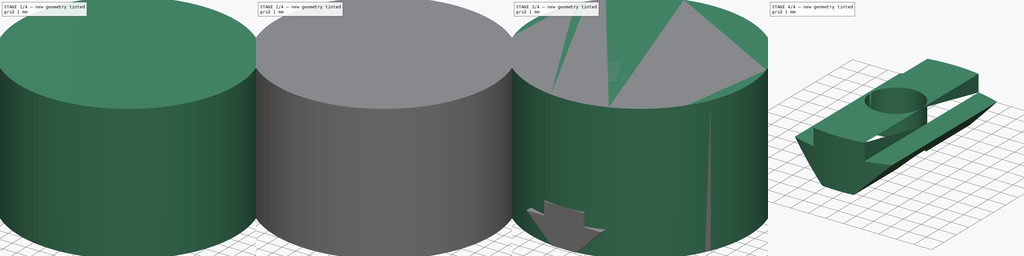
[diagram: build sequence overview — one tinted view per stage of 4, left to right]
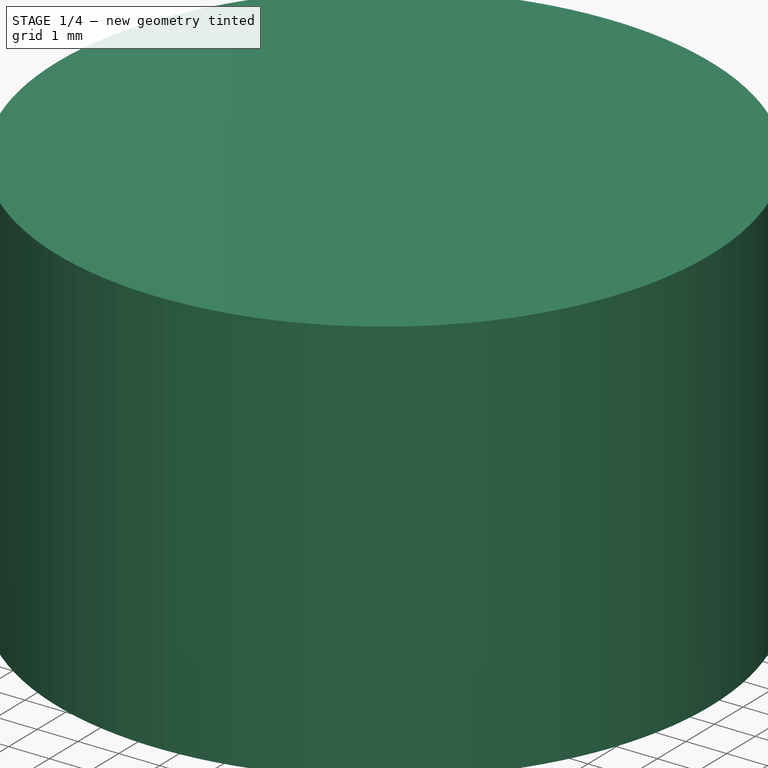
[diagram: stage 1 of 4 — iso view after this stage's code; geometry added in this stage tinted green]
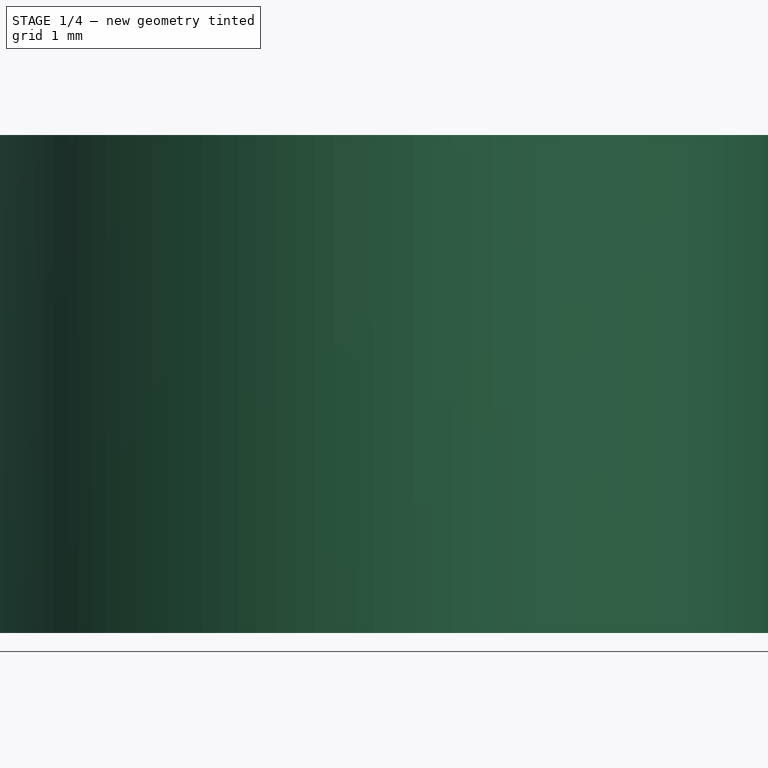
[diagram: stage 1 of 4 — front view after this stage's code; geometry added in this stage tinted green]
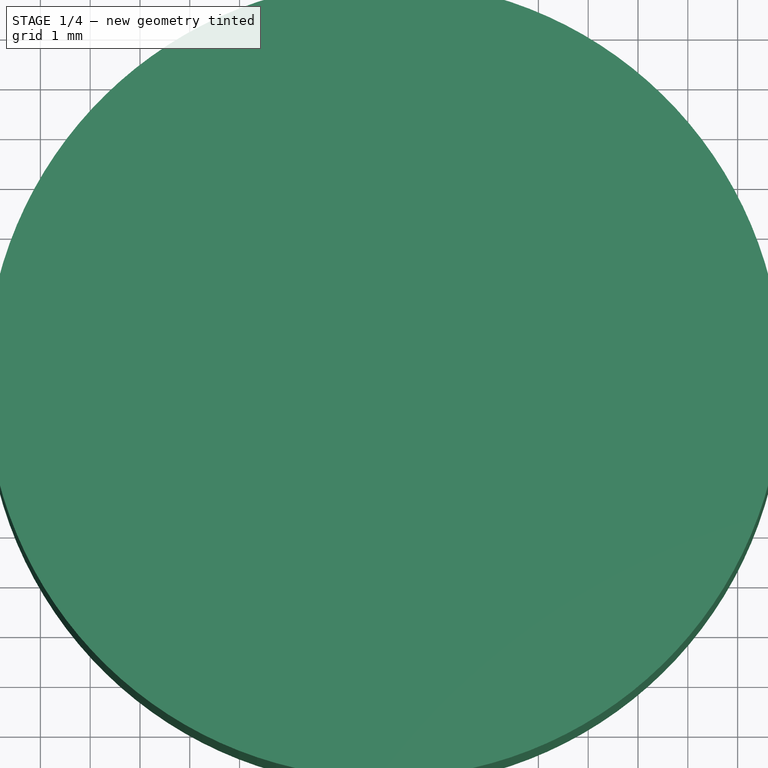
[diagram: stage 1 of 4 — top view after this stage's code; geometry added in this stage tinted green]
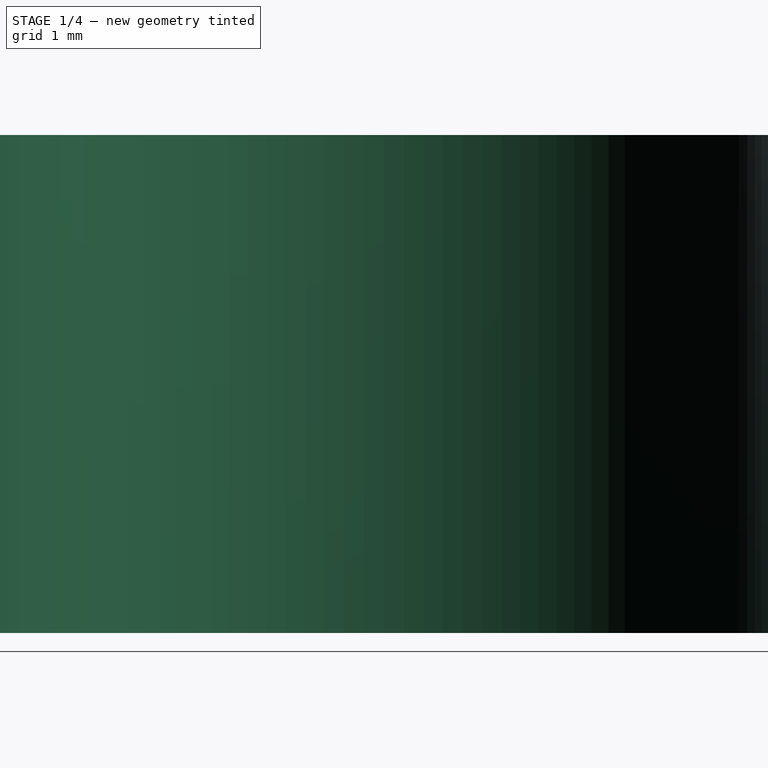
[diagram: stage 1 of 4 — right view after this stage's code; geometry added in this stage tinted green]
FCSTD DOCUMENT  (FreeCAD 0.18R16131 (Git))
Label: makerbeam-tslot
License: All rights reserved
LicenseURL: http://en.wikipedia.org/wiki/All_rights_reserved
objects: Part::Cylinder×4, Part::Cut×2, Part::Common×2, Sketcher::SketchObject×1, PartDesign::Pad×1, PartDesign::Body×1
note: 12 computed .brp shape members not serialized (recipe doc carries the construction recipe); baked Part::Feature solids carry a one-line shape summary decoded from their .brp

FEATURE [Part::Cylinder] Cylinder001  label="tap001"
  Angle = 360
  AttacherType = Attacher::AttachEngine3D
  Height = 10
  Placement = pos=(0.9,-8,0) rot=(0,0,1;0rad)
  Radius = 8
FEATURE [Part::Cylinder] Cylinder003  label="screw"
  Angle = 360
  AttacherType = Attacher::AttachEngine3D
  Height = 10
  Placement = pos=(0.9,-4.75,0) rot=(0,0,1;0rad)
  Radius = 1.45
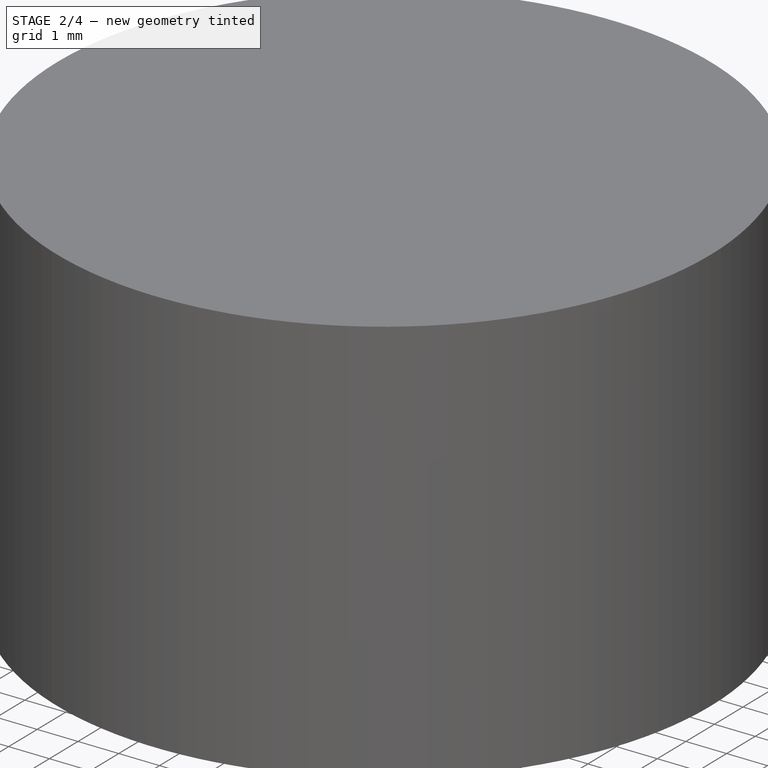
[diagram: stage 2 of 4 — iso view after this stage's code; geometry added in this stage tinted green]
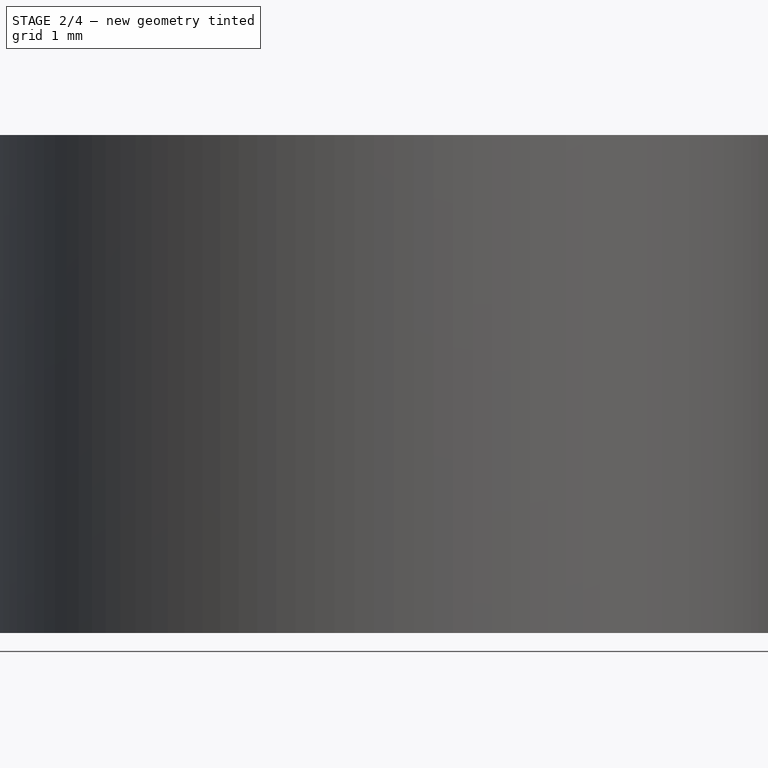
[diagram: stage 2 of 4 — front view after this stage's code; geometry added in this stage tinted green]
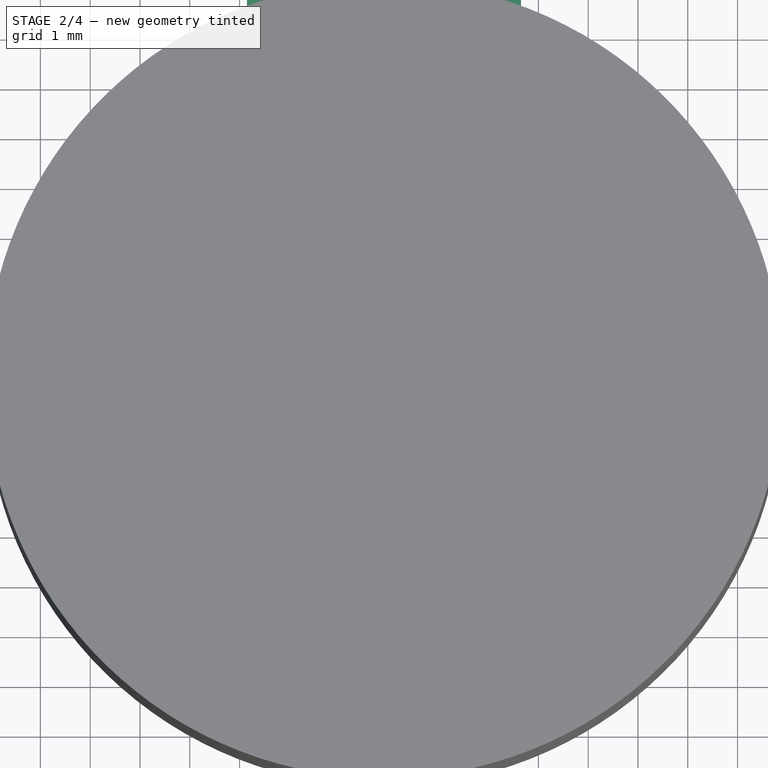
[diagram: stage 2 of 4 — top view after this stage's code; geometry added in this stage tinted green]
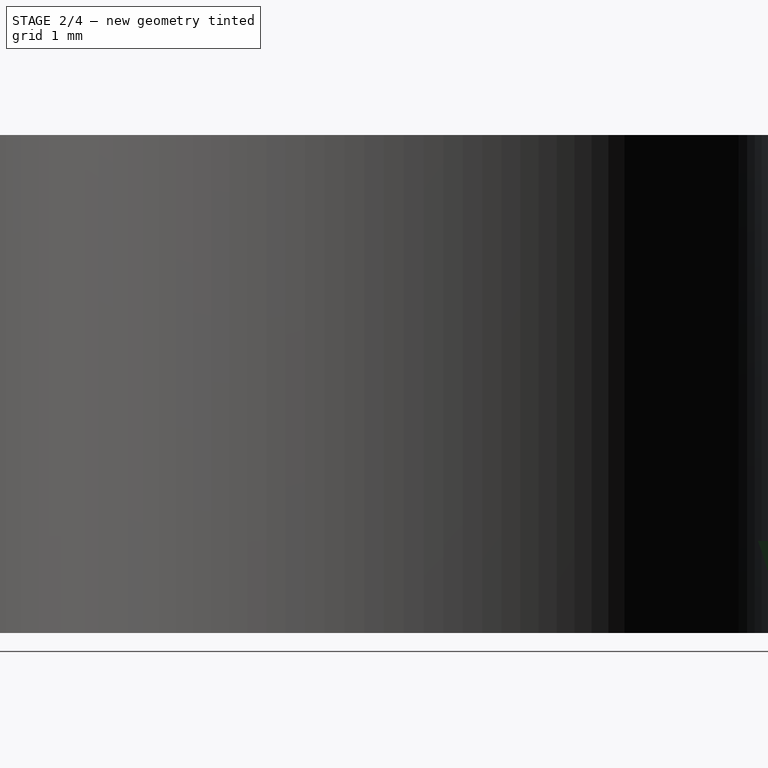
[diagram: stage 2 of 4 — right view after this stage's code; geometry added in this stage tinted green]
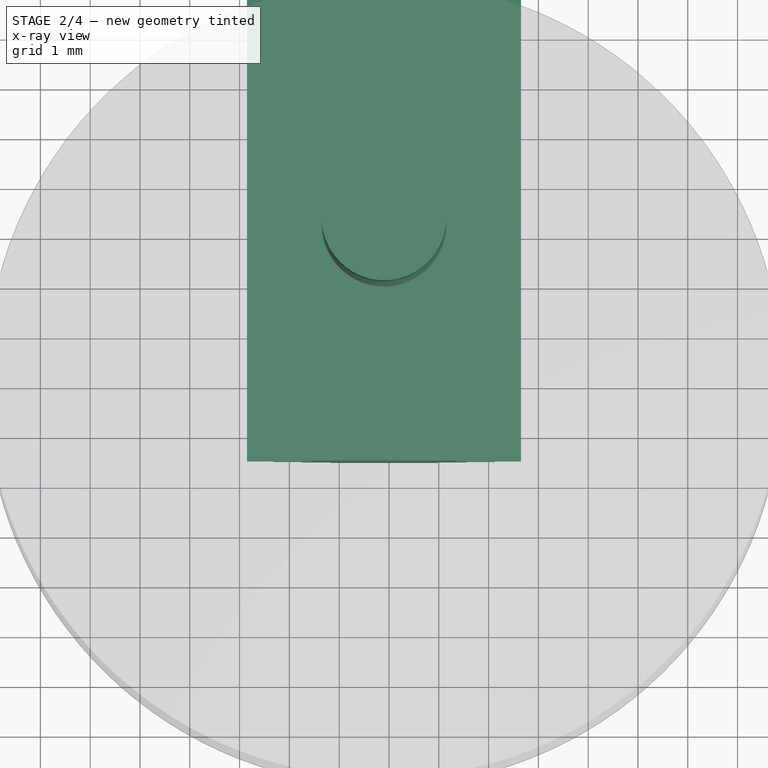
[diagram: stage 2 of 4 — x-ray composite at the top view; earlier geometry ghosted, this stage's added geometry solid]
FEATURE [Sketcher::SketchObject] Sketch
  MapMode = 5
  Placement = pos=(0,0,0) rot=(1,0,0;1.5708rad)
  Support = -> [XZ_Plane]
  sketch-geometry (8):
    g0: LineSegment StartX=-2e-16 StartY=2e-16 StartZ=0 EndX=1.8 EndY=2e-16 EndZ=0
    g1: LineSegment StartX=1.8 StartY=2e-16 StartZ=0 EndX=3.65 EndY=1.85 EndZ=0
    g2: LineSegment StartX=3.65 StartY=1.85 StartZ=0 EndX=2.35 EndY=1.85 EndZ=0
    g3: LineSegment StartX=2.35 StartY=1.85 StartZ=0 EndX=2.35 EndY=2.8 EndZ=0
    g4: LineSegment StartX=2.35 StartY=2.8 StartZ=0 EndX=-0.55 EndY=2.8 EndZ=0
    g5: LineSegment StartX=-0.55 StartY=2.8 StartZ=0 EndX=-0.55 EndY=1.85 EndZ=0
    g6: LineSegment StartX=-0.55 StartY=1.85 StartZ=0 EndX=-1.85 EndY=1.85 EndZ=0
    g7: LineSegment StartX=-1.85 StartY=1.85 StartZ=0 EndX=-2e-16 EndY=2e-16 EndZ=0
  constraints (23):
    c: Coincident(g0,g-1)
    c: Horizontal(g0)
    c: Coincident(g1,g0)
    c: Coincident(g2,g1)
    c: Horizontal(g2)
    c: Coincident(g3,g2)
    c: Vertical(g3)
    c: Horizontal(g4)
    c: Vertical(g5)
    c: Coincident(g6,g5)
    c: Horizontal(g6)
    c: Coincident(g7,g6)
    c: Coincident(g7,g0)
    c: Distance(g0) = 1.8
    c: Angle(g-1,g7) = 2.35619
    c: Coincident(g4,g5)
    c: Coincident(g4,g3)
    c: Equal(g2,g6)
    c: Angle(g1,g-1) = 2.35619
    c: Equal(g5,g3)
    c: Distance(g4) = 2.9
    c: Distance(g3) = 0.95
    c: Distance(g6) = 1.3
FEATURE [PartDesign::Pad] Pad
  Length = 9.5
  Length2 = 100
  Placement = pos=(0,0,0) rot=(1,0,0;1.5708rad)
  Profile = -> Sketch
  Type = 0
FEATURE [PartDesign::Body] Body
  Group = -> [Sketch,Pad]
  Origin = -> Origin
  Tip = -> Pad
FEATURE [Part::Cylinder] Cylinder  label="tap"
  Angle = 360
  AttacherType = Attacher::AttachEngine3D
  Height = 10
  Placement = pos=(0.9,-4.75,0) rot=(0,0,1;0rad)
  Radius = 1.25
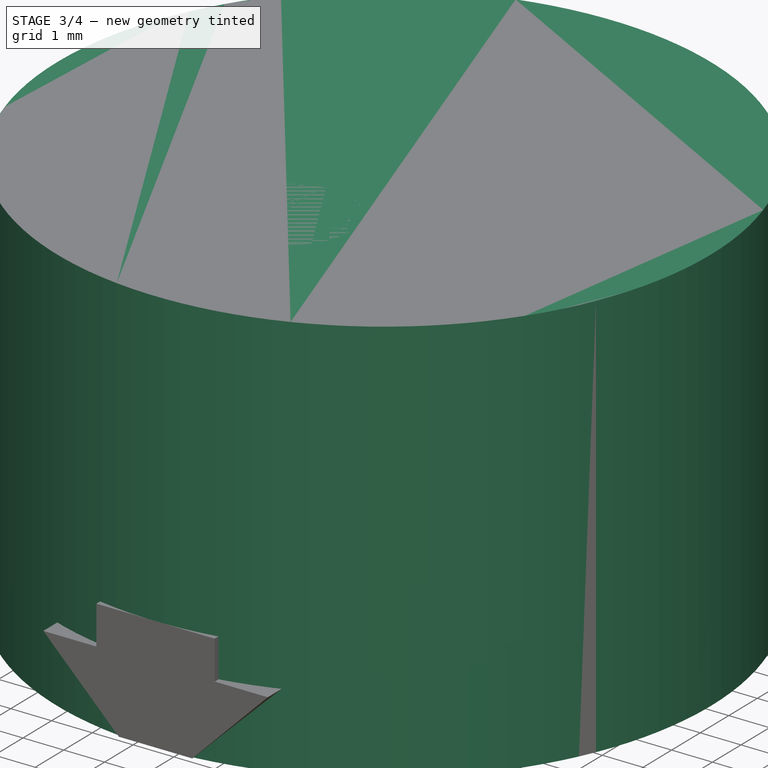
[diagram: stage 3 of 4 — iso view after this stage's code; geometry added in this stage tinted green]
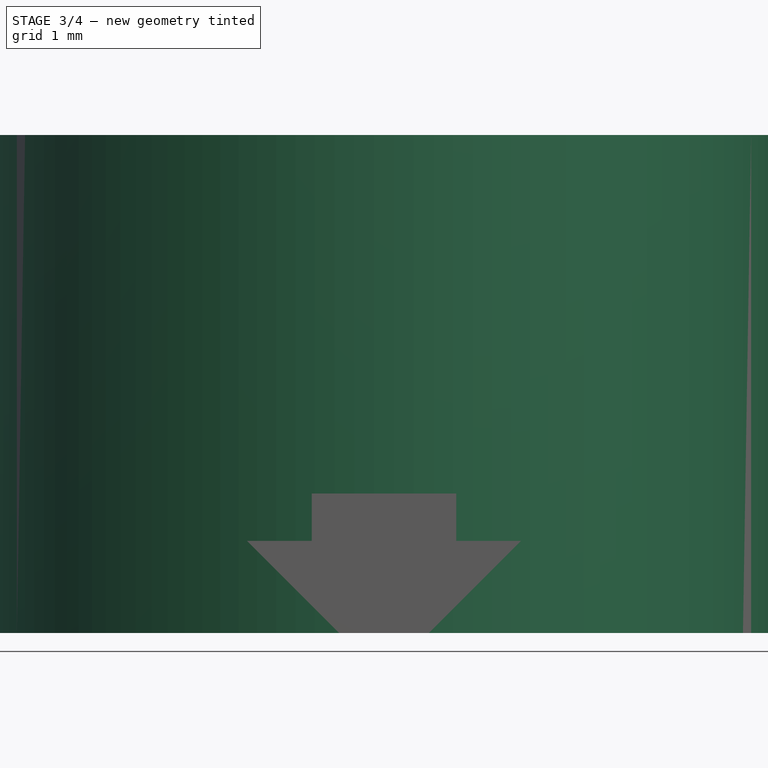
[diagram: stage 3 of 4 — front view after this stage's code; geometry added in this stage tinted green]
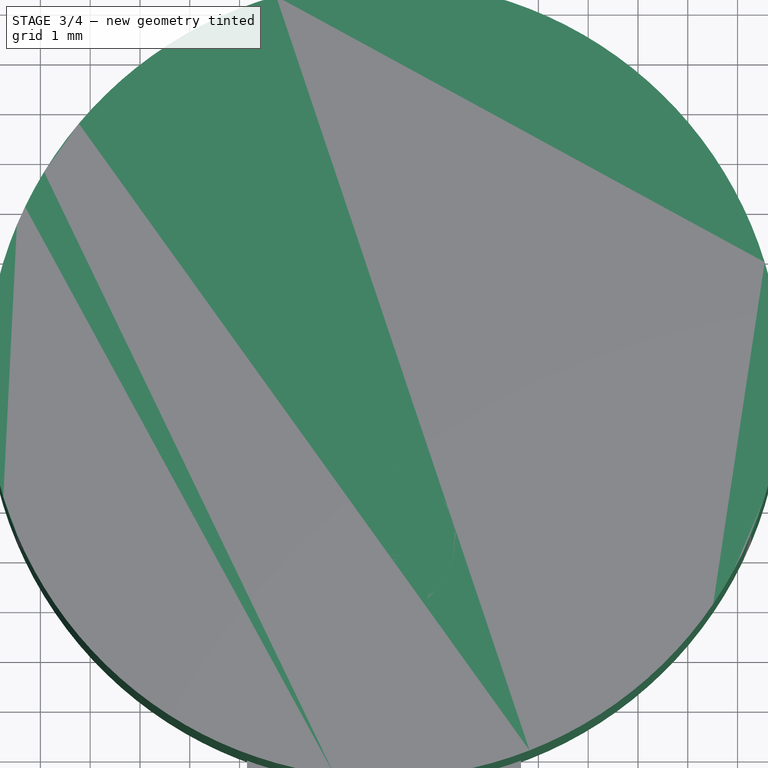
[diagram: stage 3 of 4 — top view after this stage's code; geometry added in this stage tinted green]
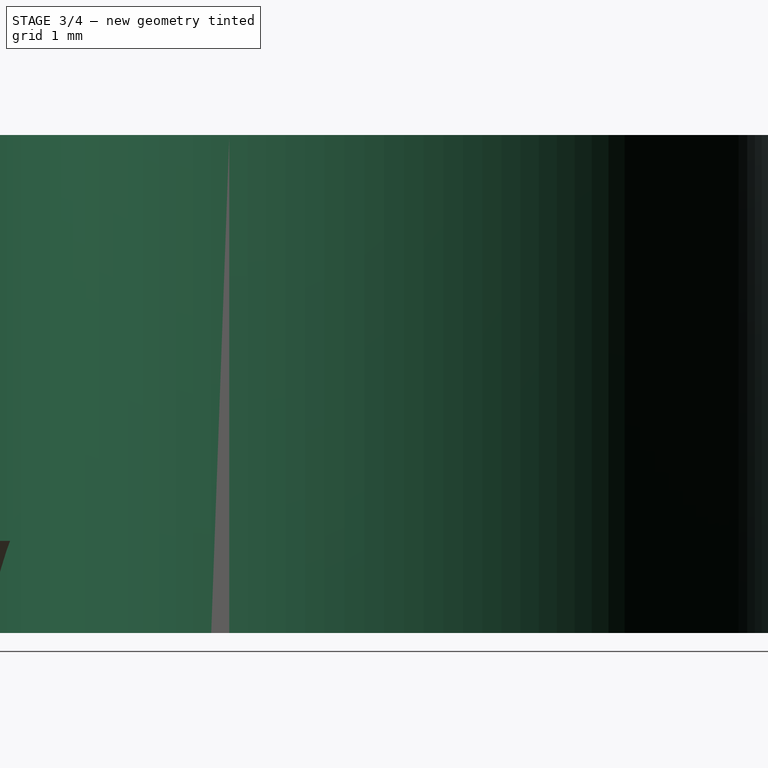
[diagram: stage 3 of 4 — right view after this stage's code; geometry added in this stage tinted green]
FEATURE [Part::Cut] Cut
  Base = -> Pad
  Tool = -> Cylinder
FEATURE [Part::Cylinder] Cylinder002  label="tap002"
  Angle = 360
  AttacherType = Attacher::AttachEngine3D
  Height = 10
  Placement = pos=(0.9,-1.5,0) rot=(0,0,1;0rad)
  Radius = 8
FEATURE [Part::Common] Common
  Base = -> Cut
  Tool = -> Cylinder001
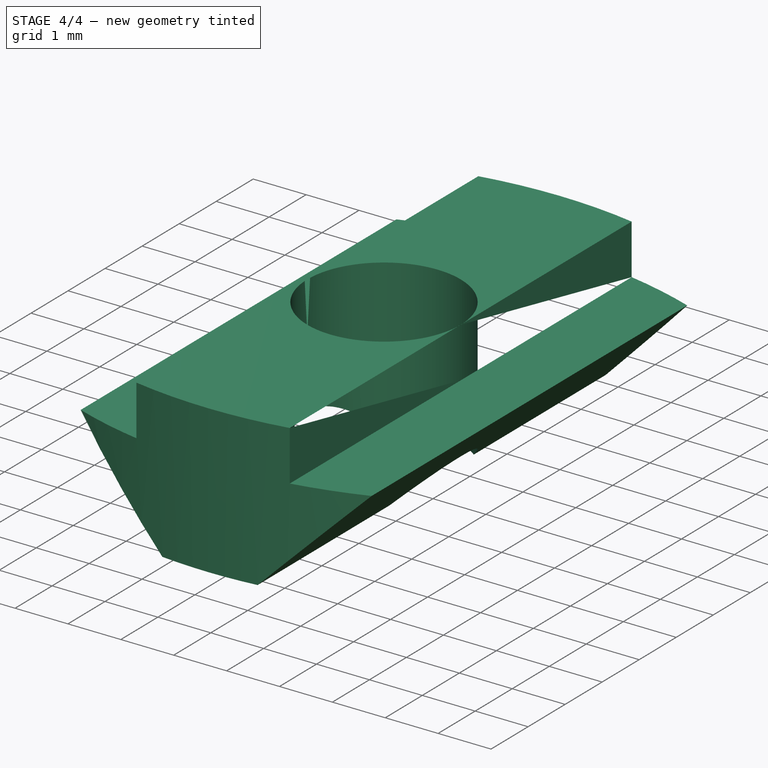
[diagram: stage 4 of 4 — iso view after this stage's code; geometry added in this stage tinted green]
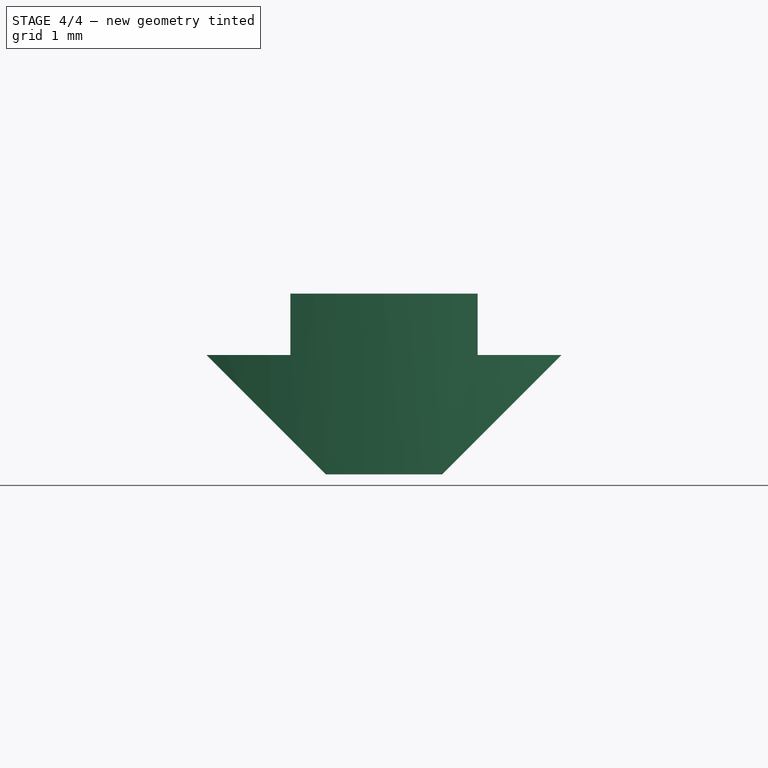
[diagram: stage 4 of 4 — front view after this stage's code; geometry added in this stage tinted green]
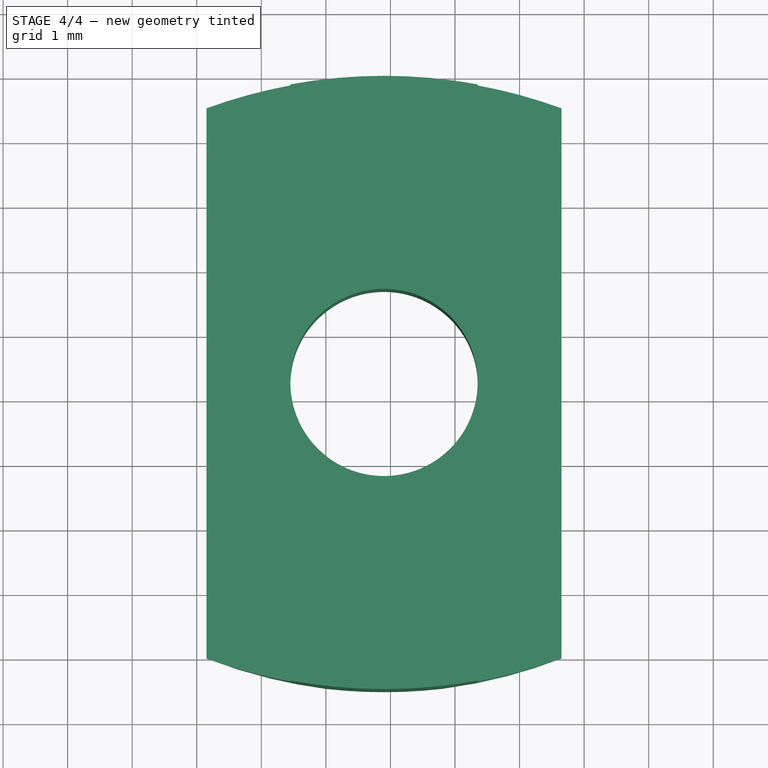
[diagram: stage 4 of 4 — top view after this stage's code; geometry added in this stage tinted green]
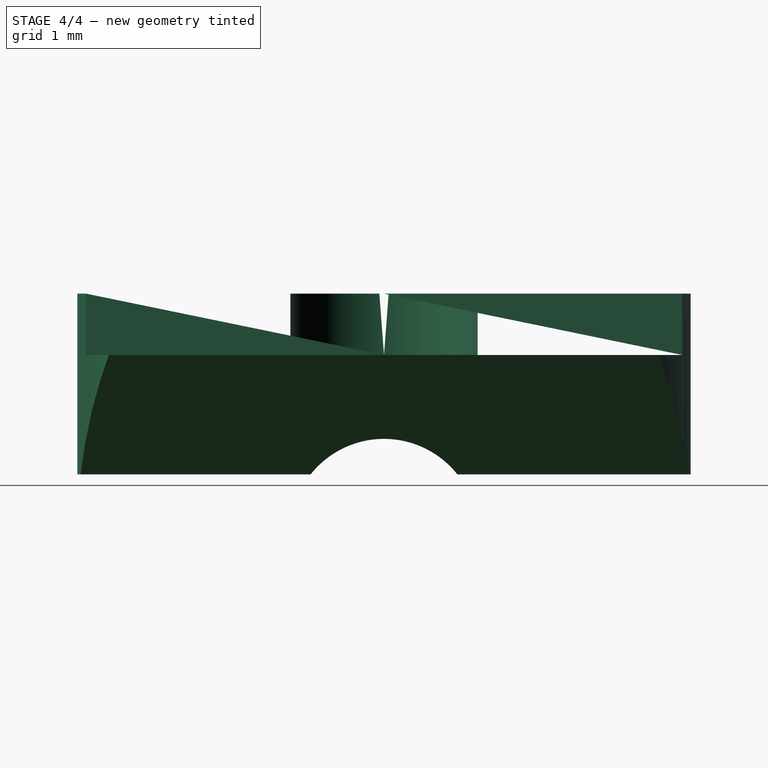
[diagram: stage 4 of 4 — right view after this stage's code; geometry added in this stage tinted green]
FEATURE [Part::Common] Common001  label="slot"
  Base = -> Cylinder002
  Tool = -> Common
FEATURE [Part::Cut] Cut001  label="t-slot"
  Base = -> Common001
  Tool = -> Cylinder003
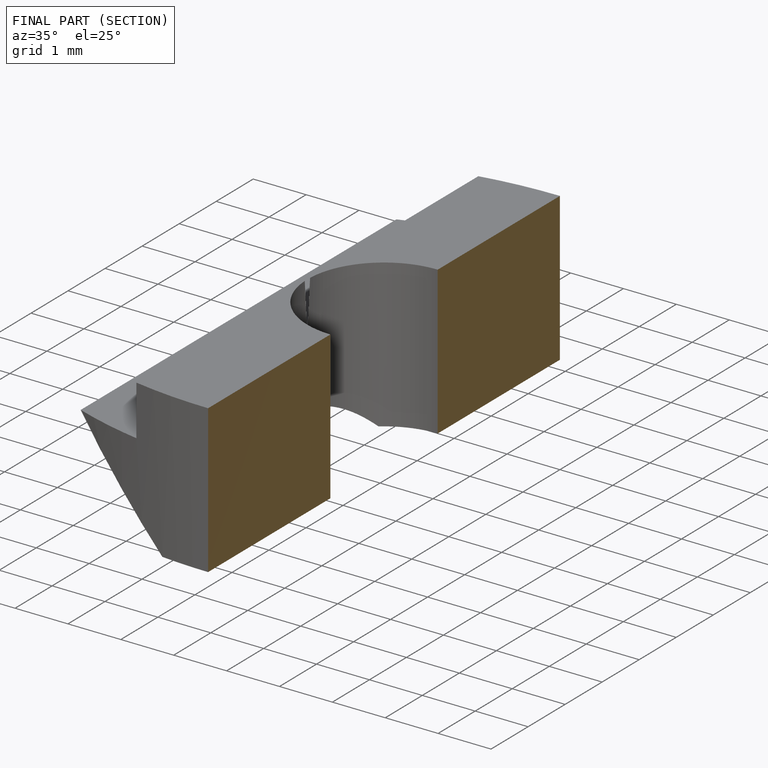
[diagram: finished part — half-section view (interior)]
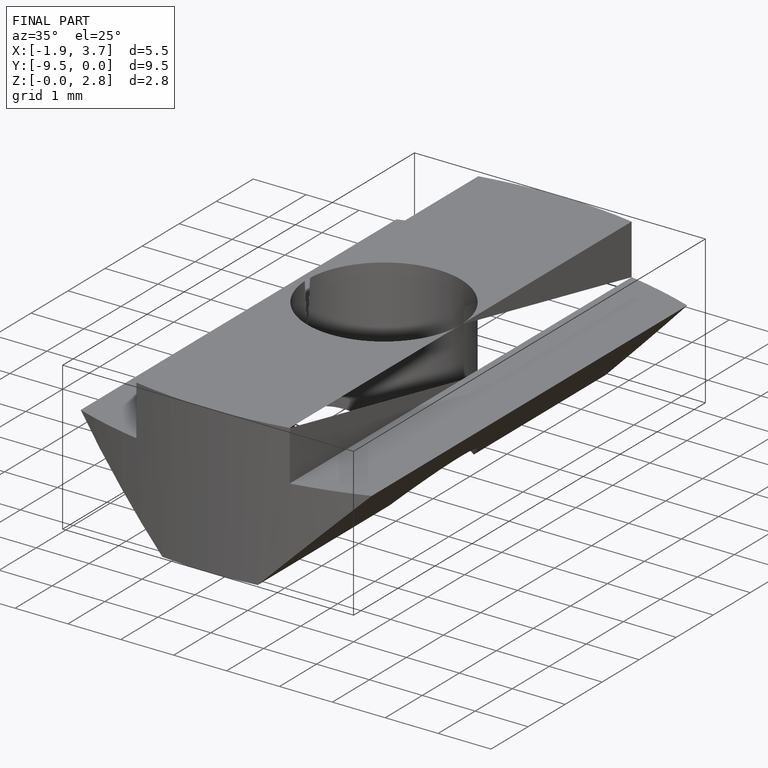
[diagram: finished part — iso view with bounding-box wireframe]
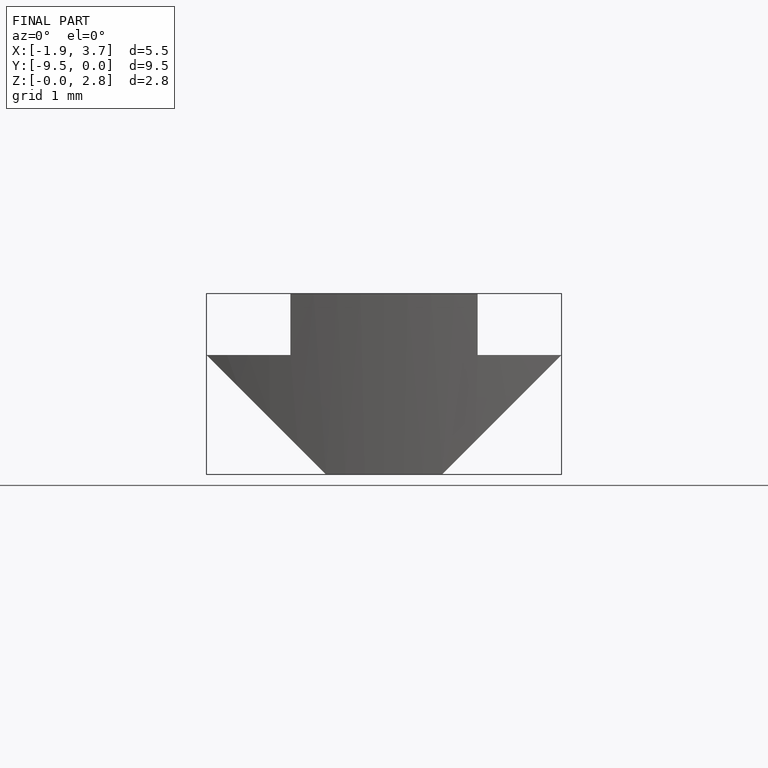
[diagram: finished part — front view with bounding-box wireframe]
